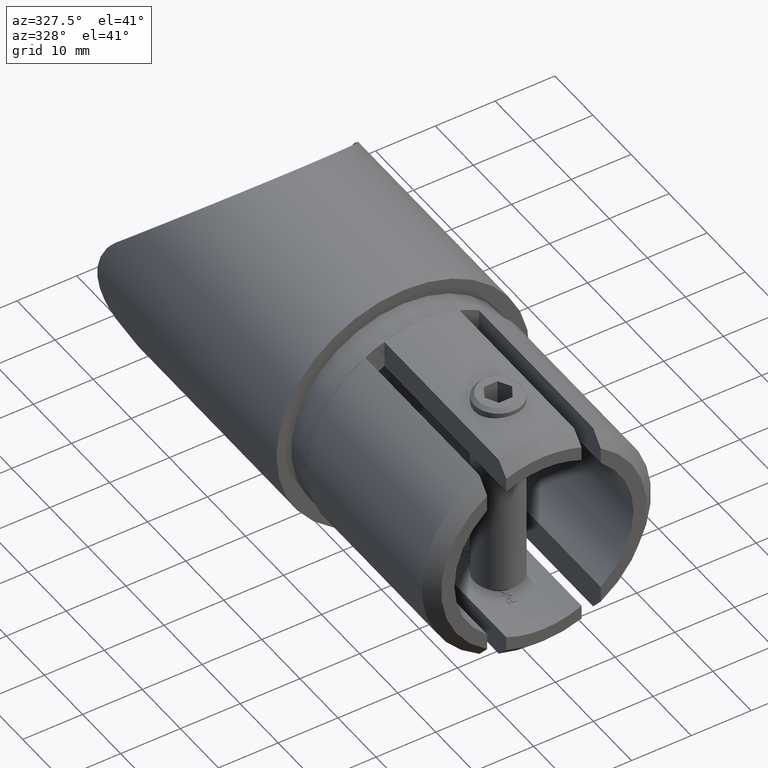
[diagram: clean part render]
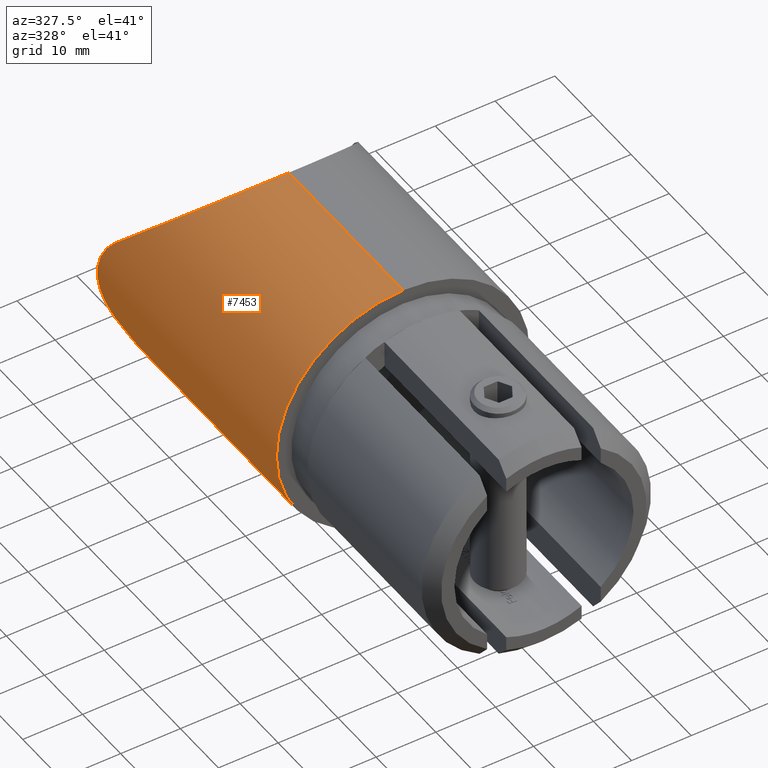
[diagram: same view with one face highlighted and labeled with its STEP entity id]
A machine part, auxiliary view. The second image highlights one B-rep face of the part: STEP entity #7453.
In plain terms, the highlighted cylindrical surface (partial cylindrical patch) has radius 21.2 mm, axis along (-0, -1, -0).
Its self-contained STEP definition (entity closure, byte-faithful):
#40 = CARTESIAN_POINT ( 'NONE',  ( 0.0000000000000000000, 0.0000000000000000000, -21.19999999999999900 ) ) ;
#800 = CARTESIAN_POINT ( 'NONE',  ( -21.16067034813972100, 46.97425688065610000, 1.332958712063229400 ) ) ;
#852 = CARTESIAN_POINT ( 'NONE',  ( -21.19208250660119600, 47.04111192829421400, 0.6681224020434508600 ) ) ;
#942 = EDGE_CURVE ( 'NONE', #12744, #4529, #10749, .T. ) ;
#1104 = CARTESIAN_POINT ( 'NONE',  ( -20.30710081018854000, 44.99810632615943700, -6.113327962288798800 ) ) ;
#1219 = CARTESIAN_POINT ( 'NONE',  ( 0.0000000000000000000, 0.0000000000000000000, 0.0000000000000000000 ) ) ;
#1321 = CARTESIAN_POINT ( 'NONE',  ( -19.98599509656699500, 44.12893218813452700, -7.071067811865476400 ) ) ;
#1566 = EDGE_CURVE ( 'NONE', #5948, #12744, #4232, .T. ) ;
#1756 = CARTESIAN_POINT ( 'NONE',  ( -21.04766096793832700, 46.73141204630751800, -2.620553182536388400 ) ) ;
#1977 = VERTEX_POINT ( 'NONE', #4710 ) ;
#1991 = CARTESIAN_POINT ( 'NONE',  ( -20.60047256517835700, 45.72092208220090000, -5.037028110006531300 ) ) ;
#2138 = VERTEX_POINT ( 'NONE', #40 ) ;
#2301 = EDGE_CURVE ( 'NONE', #4529, #2138, #11885, .T. ) ;
#2446 = ORIENTED_EDGE ( 'NONE', *, *, #2301, .T. ) ;
#2725 = AXIS2_PLACEMENT_3D ( 'NONE', #1219, #3233, #11653 ) ;
#3182 = CARTESIAN_POINT ( 'NONE',  ( -20.95837306272191100, 46.53754212434466800, -3.249943518257476500 ) ) ;
#3233 = DIRECTION ( 'NONE',  ( 0.0000000000000000000, 1.000000000000000000, 0.0000000000000000000 ) ) ;
#3562 = DIRECTION ( 'NONE',  ( 0.0000000000000000000, 0.0000000000000000000, -1.000000000000000000 ) ) ;
#3693 = CARTESIAN_POINT ( 'NONE',  ( 0.0000000000000000000, 51.20000000000000300, -21.19999999999999900 ) ) ;
#3767 = CARTESIAN_POINT ( 'NONE',  ( 2.596251214192388800E-015, 51.20000000000000300, 21.19999999999999900 ) ) ;
#3859 = DIRECTION ( 'NONE',  ( -0.0000000000000000000, -1.000000000000000000, -0.0000000000000000000 ) ) ;
#3873 = CARTESIAN_POINT ( 'NONE',  ( -20.30655066572403600, 44.99663601923123900, 6.114859493957054000 ) ) ;
#4101 = AXIS2_PLACEMENT_3D ( 'NONE', #4645, #6636, #3562 ) ;
#4232 = B_SPLINE_CURVE_WITH_KNOTS ( 'NONE', 3,
 ( #7988, #9064, #3873, #11244, #11280, #4958, #12276, #13335, #11142, #7043, #800, #852, #10184, #12317, #7084, #1756, #3182, #8203, #1991, #1104, #12462, #11408 ),
 .UNSPECIFIED., .F., .F.,
 ( 4, 2, 2, 2, 2, 2, 2, 2, 2, 2, 4 ),
 ( 1.734723475976807100E-018, 0.001982250447352475400, 0.002973375671028713400, 0.003964500894704951800, 0.005946751342057429400, 0.006937876565733668200, 0.007929001789409907000, 0.009911252236762382900, 0.01189350268411486000, 0.01387575313146734000, 0.01585800357881981400 ),
 .UNSPECIFIED. ) ;
#4440 = EDGE_CURVE ( 'NONE', #1977, #5948, #5151, .T. ) ;
#4529 = VERTEX_POINT ( 'NONE', #13035 ) ;
#4645 = CARTESIAN_POINT ( 'NONE',  ( 0.0000000000000000000, 51.20000000000000300, 0.0000000000000000000 ) ) ;
#4710 = CARTESIAN_POINT ( 'NONE',  ( 2.596251214192388800E-015, 29.99999999999999600, 21.19999999999999900 ) ) ;
#4824 = CARTESIAN_POINT ( 'NONE',  ( -9.295374670892686100, 30.00000000000000000, 21.19999999999999600 ) ) ;
#4958 = CARTESIAN_POINT ( 'NONE',  ( -20.72745405385941800, 46.01370072827619900, 4.460884871628239000 ) ) ;
#5151 =( BOUNDED_CURVE ( )  B_SPLINE_CURVE ( 3, ( #9129, #4824, #10104, #7996 ),
 .UNSPECIFIED., .F., .F. ) 
 B_SPLINE_CURVE_WITH_KNOTS ( ( 4, 4 ),
 ( 0.0000000000000000000, 1.230739214454828100 ),
 .UNSPECIFIED. ) 
 CURVE ( )  GEOMETRIC_REPRESENTATION_ITEM ( )  RATIONAL_B_SPLINE_CURVE ( ( 1.000000000000000000, 0.8777067620509445600, 0.8777067620509445600, 1.000000000000000000 ) ) 
 REPRESENTATION_ITEM ( '' )  );
#5541 = CARTESIAN_POINT ( 'NONE',  ( -19.98599509656699500, 44.12893218813452700, -7.071067811865476400 ) ) ;
#5948 = VERTEX_POINT ( 'NONE', #9330 ) ;
#6636 = DIRECTION ( 'NONE',  ( -0.0000000000000000000, -1.000000000000000000, -0.0000000000000000000 ) ) ;
#7043 = CARTESIAN_POINT ( 'NONE',  ( -21.13716877168604600, 46.92413345803343100, 1.662948848412326000 ) ) ;
#7084 = CARTESIAN_POINT ( 'NONE',  ( -21.16950985784444600, 46.99374078072403900, -1.312700873163061200 ) ) ;
#7453 = ADVANCED_FACE ( 'NONE', ( #8301 ), #13392, .T. ) ;
#7490 = CARTESIAN_POINT ( 'NONE',  ( 2.596251214192388800E-015, 0.0000000000000000000, 21.19999999999999900 ) ) ;
#7510 = VECTOR ( 'NONE', #3859, 1000.000000000000000 ) ;
#7820 = EDGE_CURVE ( 'NONE', #2138, #11123, #11972, .T. ) ;
#7988 = CARTESIAN_POINT ( 'NONE',  ( -19.98599509656699200, 44.12893218813452000, 7.071067811865474600 ) ) ;
#7996 = CARTESIAN_POINT ( 'NONE',  ( -19.98599509656699200, 44.12893218813452000, 7.071067811865474600 ) ) ;
#8203 = CARTESIAN_POINT ( 'NONE',  ( -20.73564903918029100, 46.03439097886935400, -4.455153558748842000 ) ) ;
#8301 = FACE_OUTER_BOUND ( 'NONE', #12879, .T. ) ;
#8446 = CARTESIAN_POINT ( 'NONE',  ( -9.295374670892691400, 30.00000000000000000, -21.19999999999999600 ) ) ;
#8590 = CARTESIAN_POINT ( 'NONE',  ( -16.88560714210573400, 35.36585140543574100, -15.83414859456425500 ) ) ;
#8828 = ORIENTED_EDGE ( 'NONE', *, *, #942, .T. ) ;
#9064 = CARTESIAN_POINT ( 'NONE',  ( -20.14850322400904800, 44.58825272141510300, 6.611747278584920700 ) ) ;
#9129 = CARTESIAN_POINT ( 'NONE',  ( 2.596251214192388800E-015, 29.99999999999999600, 21.19999999999999900 ) ) ;
#9317 = ORIENTED_EDGE ( 'NONE', *, *, #4440, .T. ) ;
#9330 = CARTESIAN_POINT ( 'NONE',  ( -19.98599509656699200, 44.12893218813452000, 7.071067811865474600 ) ) ;
#9395 = ORIENTED_EDGE ( 'NONE', *, *, #13394, .F. ) ;
#9632 = LINE ( 'NONE', #3767, #7510 ) ;
#10104 = CARTESIAN_POINT ( 'NONE',  ( -16.88560714210571900, 35.36585140543572700, 15.83414859456426700 ) ) ;
#10184 = CARTESIAN_POINT ( 'NONE',  ( -21.19990480403009100, 47.05766256078425200, 0.3366344000536328800 ) ) ;
#10749 =( BOUNDED_CURVE ( )  B_SPLINE_CURVE ( 3, ( #1321, #8590, #8446, #12704 ),
 .UNSPECIFIED., .F., .F. ) 
 B_SPLINE_CURVE_WITH_KNOTS ( ( 4, 4 ),
 ( 5.052446092724757400, 6.283185307179586200 ),
 .UNSPECIFIED. ) 
 CURVE ( )  GEOMETRIC_REPRESENTATION_ITEM ( )  RATIONAL_B_SPLINE_CURVE ( ( 1.000000000000000000, 0.8777067620509444400, 0.8777067620509444400, 1.000000000000000000 ) ) 
 REPRESENTATION_ITEM ( '' )  );
#11123 = VERTEX_POINT ( 'NONE', #7490 ) ;
#11142 = CARTESIAN_POINT ( 'NONE',  ( -21.04596986472148100, 46.72772969027031600, 2.632178313476863300 ) ) ;
#11244 = CARTESIAN_POINT ( 'NONE',  ( -20.52548173066764600, 45.53621469286025600, 5.312388950993864400 ) ) ;
#11280 = CARTESIAN_POINT ( 'NONE',  ( -20.59545012941367000, 45.70380095030456900, 5.035303303636149000 ) ) ;
#11375 = VECTOR ( 'NONE', #13257, 1000.000000000000000 ) ;
#11408 = CARTESIAN_POINT ( 'NONE',  ( -19.98599509656699500, 44.12893218813452700, -7.071067811865476400 ) ) ;
#11538 = ORIENTED_EDGE ( 'NONE', *, *, #1566, .T. ) ;
#11653 = DIRECTION ( 'NONE',  ( 0.0000000000000000000, 0.0000000000000000000, 1.000000000000000000 ) ) ;
#11885 = LINE ( 'NONE', #3693, #11375 ) ;
#11972 = CIRCLE ( 'NONE', #2725, 21.19999999999999900 ) ;
#12276 = CARTESIAN_POINT ( 'NONE',  ( -20.78958926794601300, 46.15620841788644000, 4.162605178064088900 ) ) ;
#12317 = CARTESIAN_POINT ( 'NONE',  ( -21.20018780261259300, 47.05826251786451300, -0.6551204552643256100 ) ) ;
#12462 = CARTESIAN_POINT ( 'NONE',  ( -20.14856334463769000, 44.58842264915743700, -6.611577350842559900 ) ) ;
#12704 = CARTESIAN_POINT ( 'NONE',  ( 0.0000000000000000000, 29.99999999999999600, -21.19999999999999900 ) ) ;
#12744 = VERTEX_POINT ( 'NONE', #5541 ) ;
#12879 = EDGE_LOOP ( 'NONE', ( #9395, #9317, #11538, #8828, #2446, #12922 ) ) ;
#12922 = ORIENTED_EDGE ( 'NONE', *, *, #7820, .T. ) ;
#13035 = CARTESIAN_POINT ( 'NONE',  ( 0.0000000000000000000, 29.99999999999999600, -21.19999999999999900 ) ) ;
#13257 = DIRECTION ( 'NONE',  ( -0.0000000000000000000, -1.000000000000000000, -0.0000000000000000000 ) ) ;
#13335 = CARTESIAN_POINT ( 'NONE',  ( -20.95735780206382500, 46.53532266014871500, 3.256742106713688100 ) ) ;
#13392 = CYLINDRICAL_SURFACE ( 'NONE', #4101, 21.19999999999999900 ) ;
#13394 = EDGE_CURVE ( 'NONE', #1977, #11123, #9632, .T. ) ;